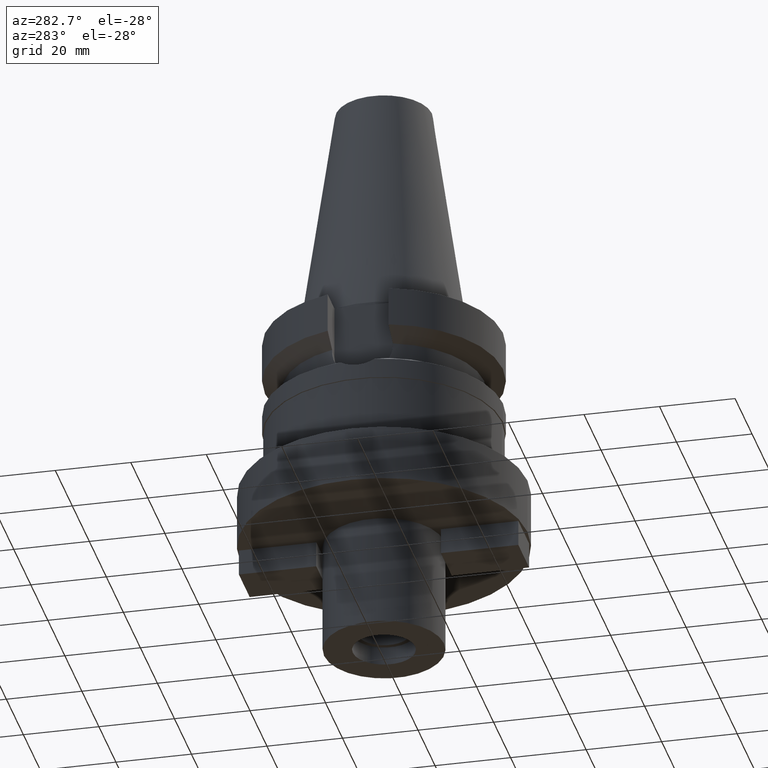
[diagram: clean part render]
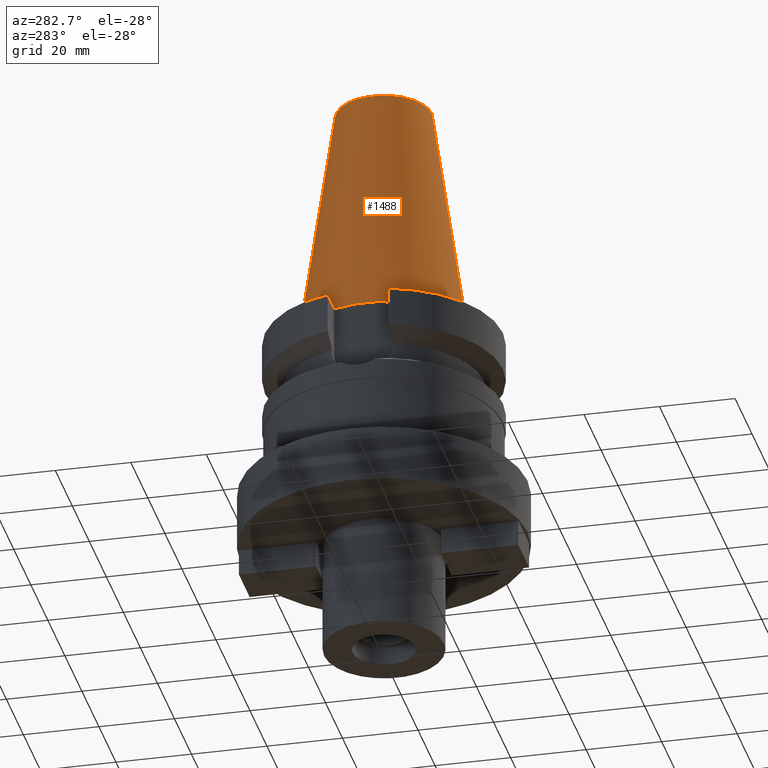
[diagram: same view with one face highlighted and labeled with its STEP entity id]
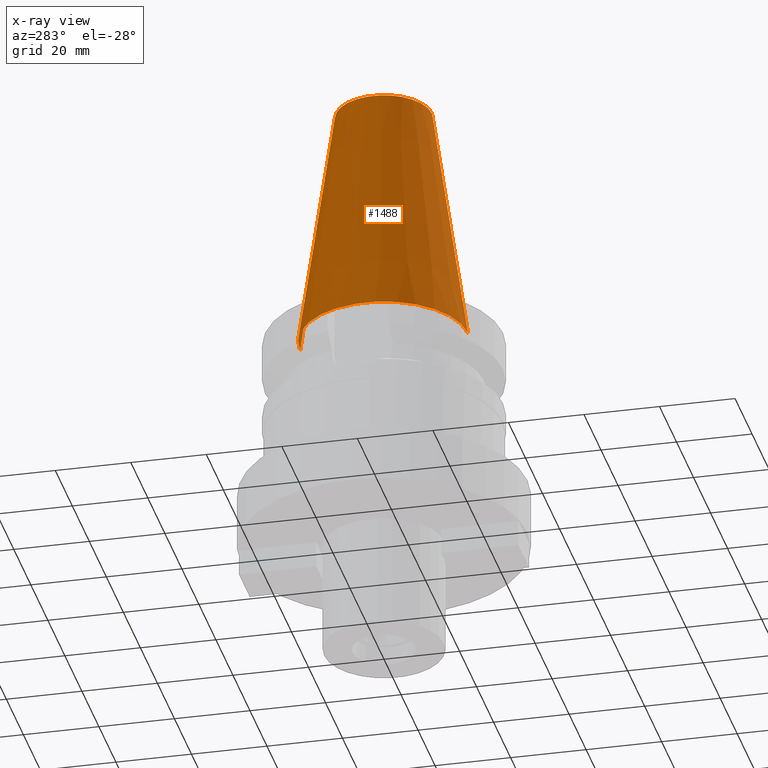
[diagram: x-ray of the same camera — body ghosted, the highlighted face saturated]
A machine part, auxiliary view. The second image highlights one B-rep face of the part: STEP entity #1488.
The next image is the same camera in x-ray: the body ghosted, the highlighted face saturated — about 1% of this face is hidden behind the body in this view.
In plain terms, the highlighted conical surface has half-angle 8.297 deg.
Its self-contained STEP definition (entity closure, byte-faithful):
#17=CARTESIAN_POINT('',(0.E0,1.625106302469E-14,6.54E1));
#18=DIRECTION('',(0.E0,0.E0,-1.E0));
#19=DIRECTION('',(0.E0,-1.E0,0.E0));
#20=AXIS2_PLACEMENT_3D('',#17,#18,#19);
#50=DIRECTION('',(0.E0,-1.443043893540E-1,-9.895333461856E-1));
#51=VECTOR('',#50,6.609175956738E1);
#52=CARTESIAN_POINT('',(0.E0,-1.268766899430E1,6.54E1));
#53=LINE('',#52,#51);
#57=CARTESIAN_POINT('',(0.E0,1.625106302469E-14,2.842170943040E-14));
#58=DIRECTION('',(0.E0,0.E0,-1.E0));
#59=DIRECTION('',(0.E0,-1.E0,0.E0));
#60=AXIS2_PLACEMENT_3D('',#57,#58,#59);
#65=DIRECTION('',(0.E0,1.443043893540E-1,-9.895333461856E-1));
#66=VECTOR('',#65,6.609175956738E1);
#67=CARTESIAN_POINT('',(0.E0,1.268766899430E1,6.54E1));
#68=LINE('',#67,#66);
#1255=CARTESIAN_POINT('',(0.E0,-1.268766899430E1,6.54E1));
#1256=CARTESIAN_POINT('',(0.E0,1.268766899430E1,6.54E1));
#1257=VERTEX_POINT('',#1255);
#1258=VERTEX_POINT('',#1256);
#1428=CARTESIAN_POINT('',(0.E0,2.2225E1,6.394884621841E-14));
#1429=VERTEX_POINT('',#1428);
#1430=CARTESIAN_POINT('',(0.E0,-2.2225E1,6.394884621841E-14));
#1431=VERTEX_POINT('',#1430);
#1474=CARTESIAN_POINT('',(0.E0,1.625106302469E-14,3.27E1));
#1475=DIRECTION('',(0.E0,0.E0,-1.E0));
#1476=DIRECTION('',(0.E0,-1.E0,0.E0));
#1477=AXIS2_PLACEMENT_3D('',#1474,#1475,#1476);
#1478=CONICAL_SURFACE('',#1477,1.745633449715E1,8.297E0);
#1480=ORIENTED_EDGE('',*,*,#1479,.F.);
#1481=ORIENTED_EDGE('',*,*,#1461,.F.);
#1483=ORIENTED_EDGE('',*,*,#1482,.T.);
#1485=ORIENTED_EDGE('',*,*,#1484,.T.);
#1486=EDGE_LOOP('',(#1480,#1481,#1483,#1485));
#1487=FACE_OUTER_BOUND('',#1486,.F.);
#21=CIRCLE('',#20,1.268766899430E1);
#61=CIRCLE('',#60,2.2225E1);
#1461=EDGE_CURVE('',#1257,#1258,#21,.T.);
#1479=EDGE_CURVE('',#1258,#1429,#68,.T.);
#1482=EDGE_CURVE('',#1257,#1431,#53,.T.);
#1484=EDGE_CURVE('',#1431,#1429,#61,.T.);
#1488=ADVANCED_FACE('',(#1487),#1478,.T.);